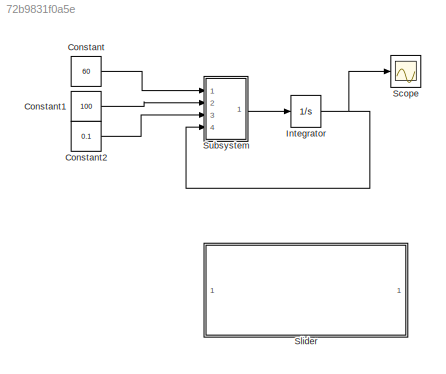
MODEL slx_72b9831f0a5e
KIND model
CONFIG AbsTol = auto
CONFIG EnableMultiTasking = off
CONFIG FixedStep = 0.01
CONFIG MaxStep = auto
CONFIG MinStep = auto
CONFIG RelTol = 1e-3
CONFIG SampleTimeConstraint = Unconstrained
CONFIG Solver = FixedStepAuto
CONFIG SolverName = FixedStepAuto
CONFIG StartTime = 0.0
CONFIG StopTime = 200.00
BLOCK [Constant] Constant
  Value = 60
BLOCK [Constant] Constant1
  Value = 100
BLOCK [Constant] Constant2
  Value = 0.1
BLOCK [Integrator] Integrator
  InitialCondition = 6.3888888888889
  Ports = [1, 1]
BLOCK [Scope] Scope
  NumInputPorts = 1
  Ports = [1]
  ScopeSpecificationString = Simulink.scopes.TimeScopeBlockCfg('CurrentConfiguration', extmgr.ConfigurationSet(extmgr.Configuration('Core','General UI',true),extmgr.Configuration('Core','Source UI',true),extmgr.Configuration('Sources','WiredSimulink',true),extmgr.Configuration('Visuals','Time Domain',true,'SerializedDisplays',{struct('MinYLimReal','-5.30419','MaxYLimReal','111.6266','YLabelReal','','MinYLimMag','0.00000','Max...<+1363ch>
BLOCK [SubSystem] Slider
  DialogController = hmiCreateDDGDialog
  IsWebBlock = on
  MaskHideContents = on
  Ports = []
  RequestExecContextInheritance = off
  Variant = off
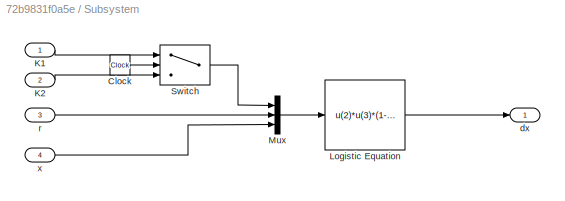
BLOCK [SubSystem] Subsystem
  Description = Logistic Equation
  Ports = [4, 1]
  RequestExecContextInheritance = off
  TreatAsAtomicUnit = on
  Variant = off
BLOCK [Clock] Subsystem/Clock
BLOCK [Inport] Subsystem/K1
  IconDisplay = Port number
BLOCK [Inport] Subsystem/K2
  IconDisplay = Port number
  Port = 2
BLOCK [Fcn] Subsystem/Logistic Equation
  Expr = u(2)*u(3)*(1-u(3)/u(1))
BLOCK [Mux] Subsystem/Mux
  DisplayOption = bar
  Inputs = 3
  Ports = [3, 1]
BLOCK [Switch] Subsystem/Switch
  InputSameDT = off
  SaturateOnIntegerOverflow = off
  Threshold = 100
BLOCK [Outport] Subsystem/dx
  IconDisplay = Signal name
BLOCK [Inport] Subsystem/r
  IconDisplay = Port number
  Port = 3
BLOCK [Inport] Subsystem/x 
  IconDisplay = Signal name
  Port = 4
LINE Constant1:1 -> Subsystem:2
LINE Constant2:1 -> Subsystem:3
LINE Constant:1 -> Subsystem:1
NET Integrator:1 -> Scope:1, Subsystem:4
LINE Subsystem/Clock:1 -> Subsystem/Switch:2
LINE Subsystem/K1:1 -> Subsystem/Switch:1
LINE Subsystem/K2:1 -> Subsystem/Switch:3
LINE Subsystem/Logistic Equation:1 -> Subsystem/dx:1
LINE Subsystem/Mux:1 -> Subsystem/Logistic Equation:1
LINE Subsystem/Switch:1 -> Subsystem/Mux:1
LINE Subsystem/r:1 -> Subsystem/Mux:2
LINE Subsystem/x :1 -> Subsystem/Mux:3
LINE Subsystem:1 -> Integrator:1
note: NET lines group one-source signal fan-out (src -> all destinations, sorted); 1:1 wires keep LINE
